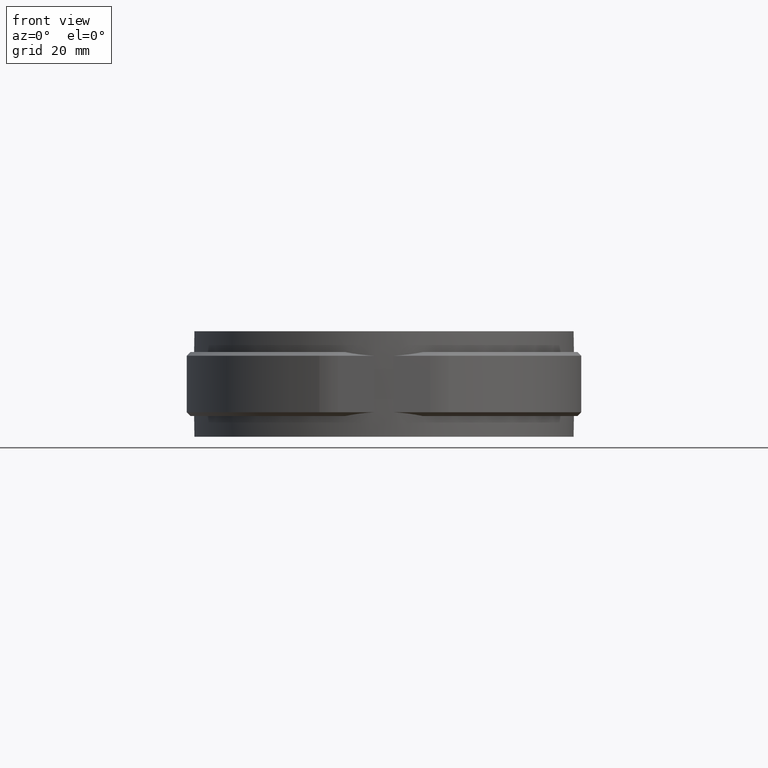
[diagram: clean part render]
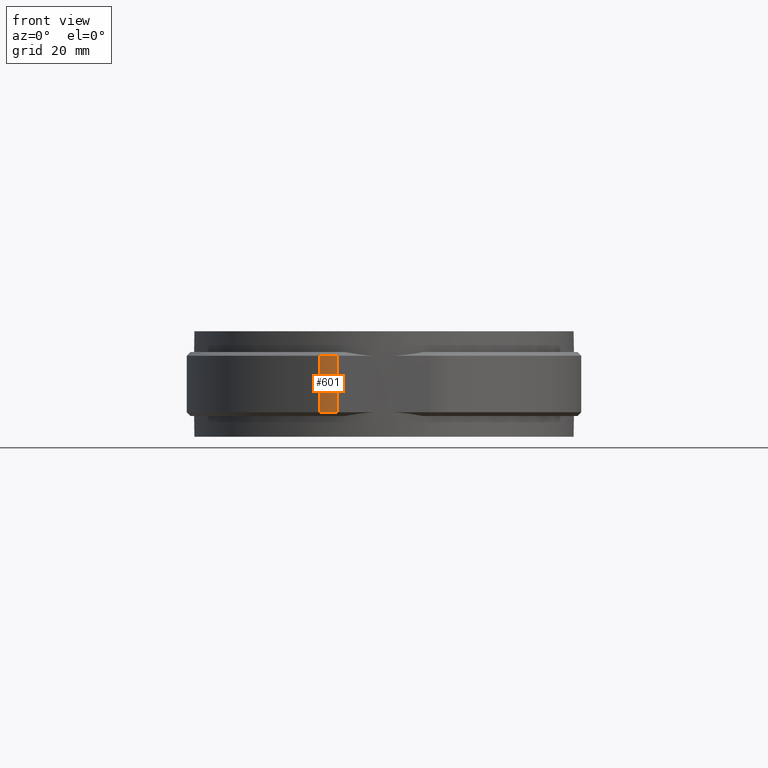
[diagram: same view with one face highlighted and labeled with its STEP entity id]
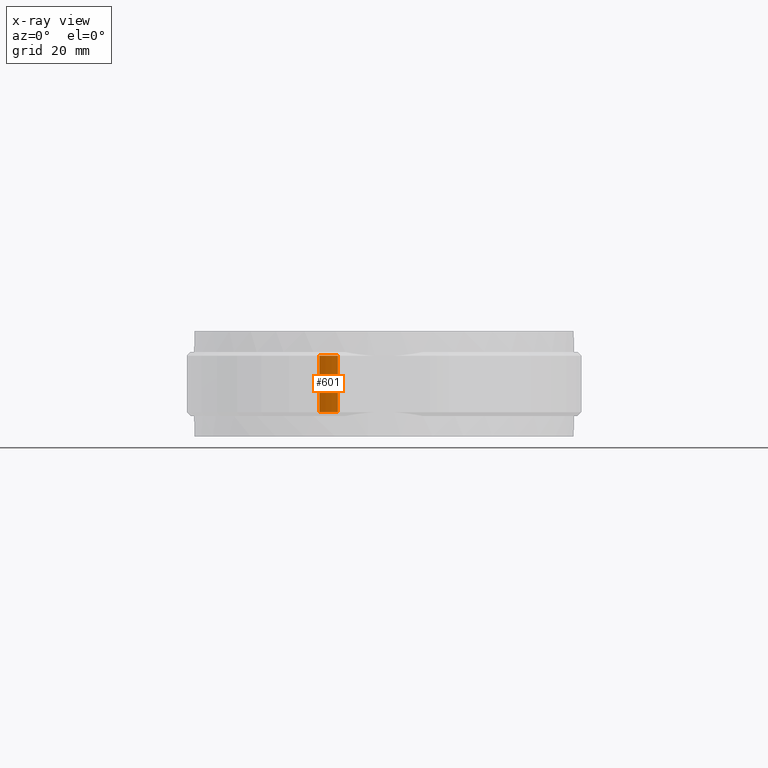
[diagram: x-ray of the same camera — body ghosted, the highlighted face saturated]
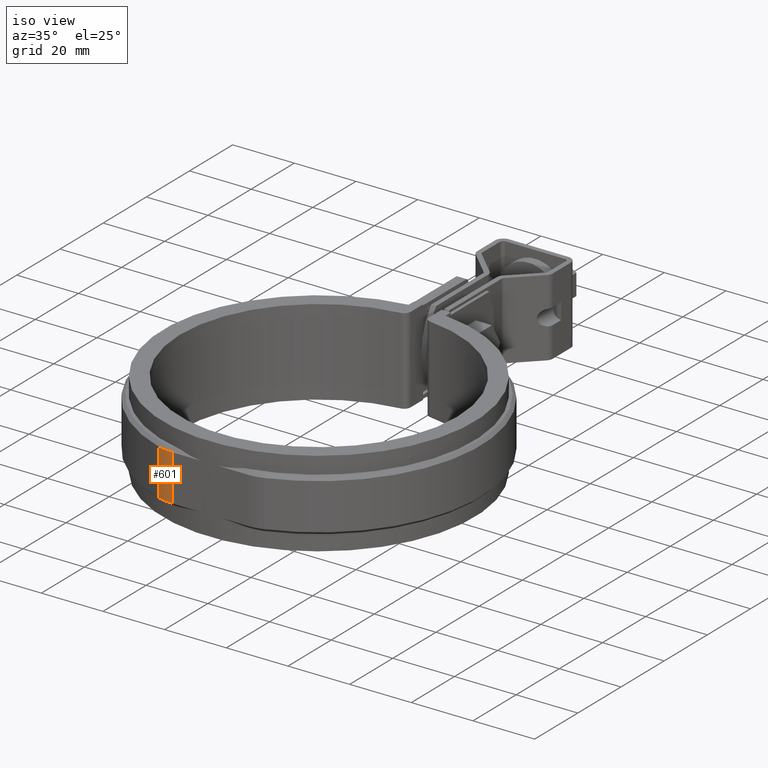
[diagram: same view with one face highlighted and labeled with its STEP entity id]
A machine part, front view. The second image highlights one B-rep face of the part: STEP entity #601.
The next image is the same camera in x-ray: the body ghosted, the highlighted face saturated — about 0% of this face is hidden behind the body in this view.
A second angle (iso view) of the same face is appended — the face is thin or edge-on in the first view.
In plain terms, the highlighted cylindrical surface (partial cylindrical patch) has radius 15 mm, axis along (0, 0, -1).
Its self-contained STEP definition (entity closure, byte-faithful):
#601 = ADVANCED_FACE( '', ( #1115 ), #1116, .T. );
#1115 = FACE_OUTER_BOUND( '', #2452, .T. );
#1116 = CYLINDRICAL_SURFACE( '', #2453, 15.0000000000000 );
#2452 = EDGE_LOOP( '', ( #5414, #5415, #5416, #5417 ) );
#2453 = AXIS2_PLACEMENT_3D( '', #5418, #5419, #5420 );
#5414 = ORIENTED_EDGE( '', *, *, #7759, .T. );
#5415 = ORIENTED_EDGE( '', *, *, #7733, .T. );
#5416 = ORIENTED_EDGE( '', *, *, #7760, .F. );
#5417 = ORIENTED_EDGE( '', *, *, #7681, .T. );
#5418 = CARTESIAN_POINT( '', ( -12.2579117307966, -35.4400000000000, -8.50000000000000 ) );
#5419 = DIRECTION( '', ( 0.000000000000000, 0.000000000000000, -1.00000000000000 ) );
#5420 = DIRECTION( '', ( -0.0952380952380952, 0.995454521922232, 0.000000000000000 ) );
#7681 = EDGE_CURVE( '', #8941, #8946, #8948, .T. );
#7733 = EDGE_CURVE( '', #8950, #9022, #9024, .F. );
#7759 = EDGE_CURVE( '', #8946, #8950, #9060, .T. );
#7760 = EDGE_CURVE( '', #8941, #9022, #9061, .T. );
#8941 = VERTEX_POINT( '', #12791 );
#8946 = VERTEX_POINT( '', #12797 );
#8948 = CIRCLE( '', #12800, 15.0000000000000 );
#8950 = VERTEX_POINT( '', #12802 );
#9022 = VERTEX_POINT( '', #12918 );
#9024 = CIRCLE( '', #12921, 15.0000000000000 );
#9060 = LINE( '', #12971, #12972 );
#9061 = LINE( '', #12973, #12974 );
#12791 = CARTESIAN_POINT( '', ( -17.1610764231152, -49.6160000000000, -7.50000000000000 ) );
#12797 = CARTESIAN_POINT( '', ( -12.2579117307966, -50.4400000000000, -7.50000000000000 ) );
#12800 = AXIS2_PLACEMENT_3D( '', #14809, #14810, #14811 );
#12802 = CARTESIAN_POINT( '', ( -12.2579117307966, -50.4400000000000, 7.50000000000000 ) );
#12918 = CARTESIAN_POINT( '', ( -17.1610764231152, -49.6160000000000, 7.50000000000000 ) );
#12921 = AXIS2_PLACEMENT_3D( '', #14881, #14882, #14883 );
#12971 = CARTESIAN_POINT( '', ( -12.2579117307966, -50.4400000000000, -8.50000000000000 ) );
#12972 = VECTOR( '', #14931, 1000.00000000000 );
#12973 = CARTESIAN_POINT( '', ( -17.1610764231152, -49.6160000000000, -8.50000000000000 ) );
#12974 = VECTOR( '', #14932, 1000.00000000000 );
#14809 = CARTESIAN_POINT( '', ( -12.2579117307966, -35.4400000000000, -7.50000000000000 ) );
#14810 = DIRECTION( '', ( 0.000000000000000, 0.000000000000000, 1.00000000000000 ) );
#14811 = DIRECTION( '', ( 1.00000000000000, 0.000000000000000, 0.000000000000000 ) );
#14881 = CARTESIAN_POINT( '', ( -12.2579117307966, -35.4400000000000, 7.50000000000000 ) );
#14882 = DIRECTION( '', ( 0.000000000000000, 0.000000000000000, 1.00000000000000 ) );
#14883 = DIRECTION( '', ( 1.00000000000000, 0.000000000000000, 0.000000000000000 ) );
#14931 = DIRECTION( '', ( 0.000000000000000, 0.000000000000000, 1.00000000000000 ) );
#14932 = DIRECTION( '', ( 0.000000000000000, 0.000000000000000, 1.00000000000000 ) );